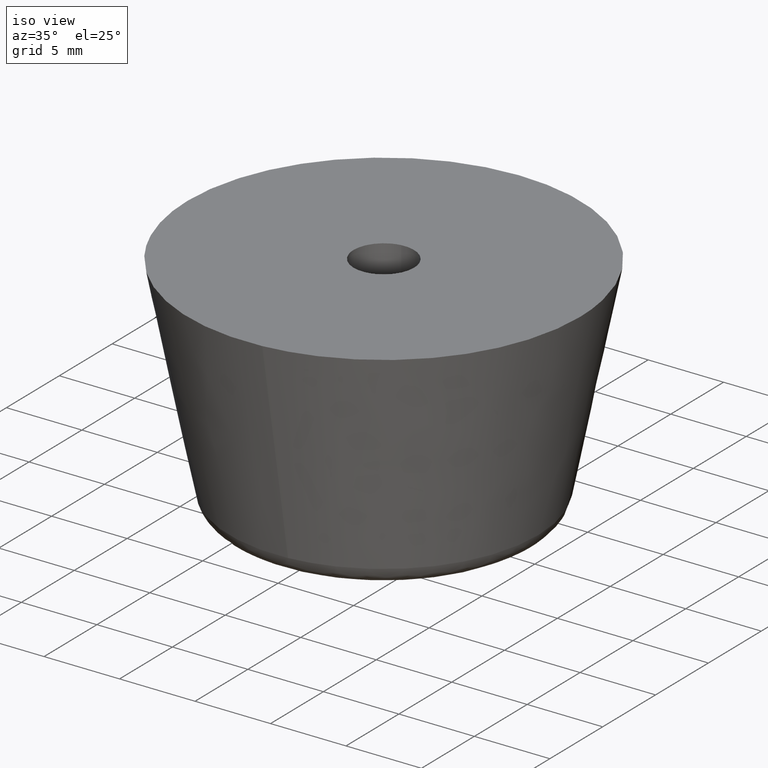
[diagram: clean part render]
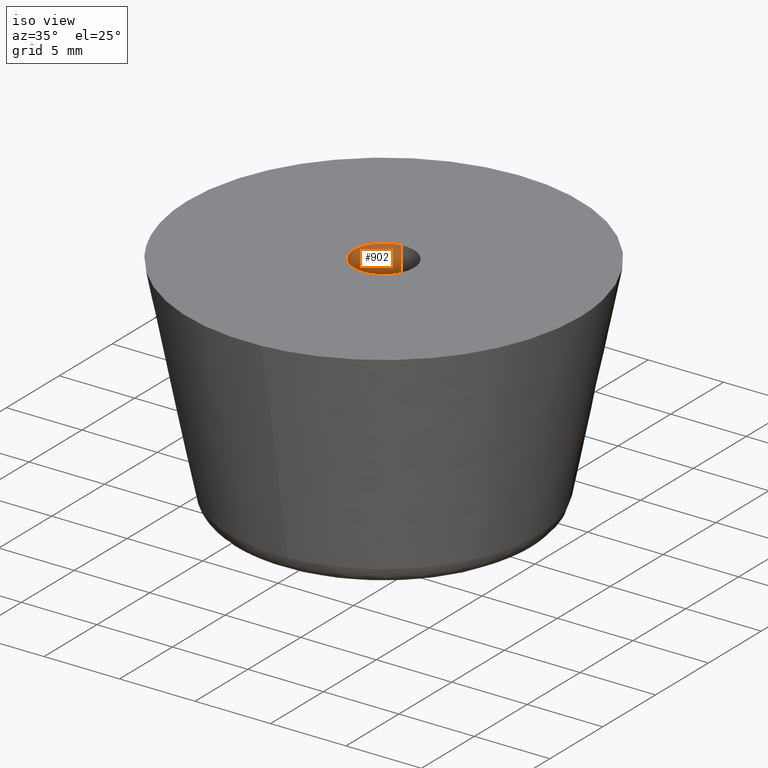
[diagram: same view with one face highlighted and labeled with its STEP entity id]
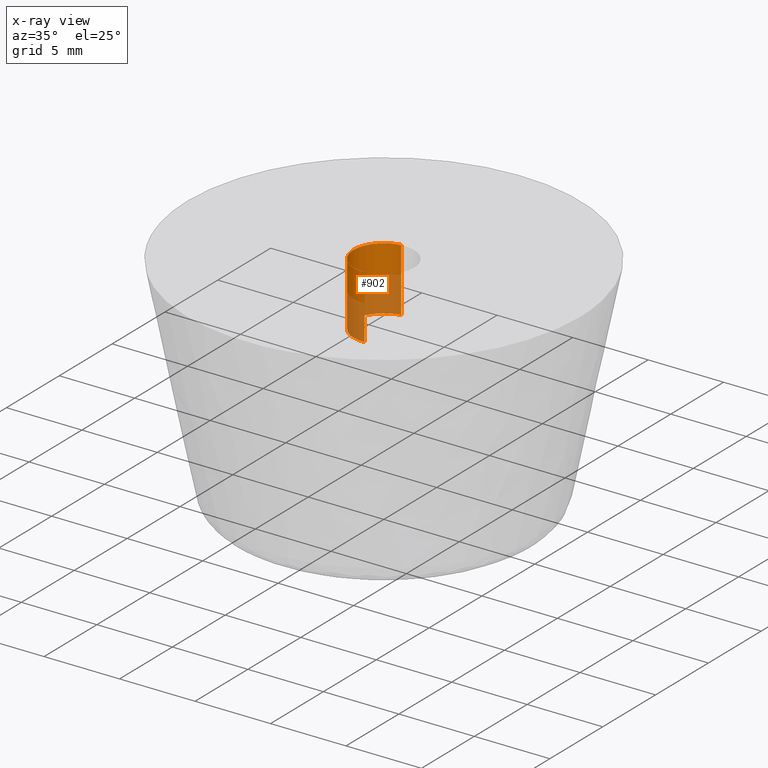
[diagram: x-ray of the same camera — body ghosted, the highlighted face saturated]
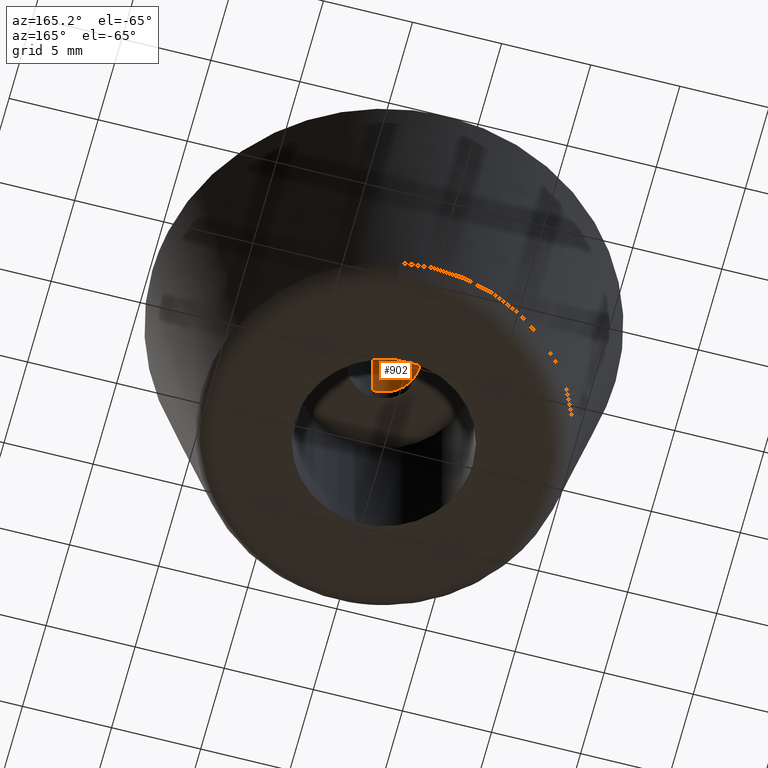
[diagram: same view with one face highlighted and labeled with its STEP entity id]
A machine part, iso view. The second image highlights one B-rep face of the part: STEP entity #902.
The next image is the same camera in x-ray: the body ghosted, the highlighted face saturated — about 52% of this face is hidden behind the body in this view.
A second angle (auxiliary view) of the same face is appended — the face is thin or edge-on in the first view.
In plain terms, the highlighted face is a freeform B-spline surface patch.
Its self-contained STEP definition (entity closure, byte-faithful):
#739=CARTESIAN_POINT('',(-0.236068469352989,1.986019052722641,15.0));
#740=VERTEX_POINT('',#739);
#758=CARTESIAN_POINT('',(-0.236068469352989,1.986019052722641,10.800000000000001));
#759=VERTEX_POINT('',#758);
#760=CARTESIAN_POINT('',(-0.236068469352989,1.986019052722641,15.0));
#761=CARTESIAN_POINT('',(-0.236068469352989,1.986019052722641,10.800000000000001));
#762=QUASI_UNIFORM_CURVE('',1,(#760,#761),.UNSPECIFIED.,.F.,.U.);
#763=EDGE_CURVE('',#740,#759,#762,.T.);
#782=CARTESIAN_POINT('',(0.122097079115449,-1.996269596840936,10.800000000000001));
#783=VERTEX_POINT('',#782);
#797=CARTESIAN_POINT('',(0.122097079115449,-1.996269596840936,15.0));
#798=VERTEX_POINT('',#797);
#799=CARTESIAN_POINT('',(0.122097079115449,-1.996269596840936,15.0));
#800=CARTESIAN_POINT('',(0.122097079115449,-1.996269596840936,10.800000000000001));
#801=QUASI_UNIFORM_CURVE('',1,(#799,#800),.UNSPECIFIED.,.F.,.U.);
#802=EDGE_CURVE('',#798,#783,#801,.T.);
#820=CARTESIAN_POINT('',(0.122097079069714,-1.996269596843733,15.105000000000000));
#821=CARTESIAN_POINT('',(-1.874172517774020,-2.118366675913447,15.104999999999999));
#822=CARTESIAN_POINT('',(-1.996269596843733,-0.122097079069714,15.105000000000000));
#823=CARTESIAN_POINT('',(-2.111572393465055,1.763086981679002,15.105000000000000));
#824=CARTESIAN_POINT('',(-0.236068469313517,1.986019052727332,15.105000000000000));
#825=CARTESIAN_POINT('',(0.122097079069714,-1.996269596843733,10.692375000000000));
#826=CARTESIAN_POINT('',(-1.874172517774020,-2.118366675913447,10.692375000000000));
#827=CARTESIAN_POINT('',(-1.996269596843733,-0.122097079069714,10.692375000000000));
#828=CARTESIAN_POINT('',(-2.111572393465055,1.763086981679002,10.692374999999998));
#829=CARTESIAN_POINT('',(-0.236068469313517,1.986019052727332,10.692374999999997));
#837=(BOUNDED_SURFACE()B_SPLINE_SURFACE(2,1,((#820,#825),(#821,#826),(#822,#827),(#823,#828),(#824,#829)),.UNSPECIFIED.,.F.,.F.,.U.)B_SPLINE_SURFACE_WITH_KNOTS((3,2,3),(2,2),(0.0,3.313708498984759,6.494868658010128),(0.0,4.412625000000004),.UNSPECIFIED.)GEOMETRIC_REPRESENTATION_ITEM()RATIONAL_B_SPLINE_SURFACE(((1.0,1.0),(0.707106781186548,0.707106781186548),(1.0,1.0),(0.718822509939086,0.718822509939086),(0.977505800795127,0.977505800795127)))REPRESENTATION_ITEM('')SURFACE());
#838=CARTESIAN_POINT('',(-2.0,0.0,15.0));
#839=VERTEX_POINT('',#838);
#840=CARTESIAN_POINT('',(-2.0,0.0,15.0));
#841=CARTESIAN_POINT('',(-2.000000000000000,1.776349051831628,15.0));
#842=CARTESIAN_POINT('',(-0.236068469352989,1.986019052722640,15.000000000000004));
#850=(BOUNDED_CURVE()B_SPLINE_CURVE(2,(#840,#841,#842),.UNSPECIFIED.,.F.,.U.)B_SPLINE_CURVE_WITH_KNOTS((3,3),(0.0,0.229562473508926),.UNSPECIFIED.)CURVE()GEOMETRIC_REPRESENTATION_ITEM()RATIONAL_B_SPLINE_CURVE((1.0,0.731050832860771,0.956026754174719))REPRESENTATION_ITEM(''));
#851=EDGE_CURVE('',#839,#740,#850,.T.);
#852=ORIENTED_EDGE('',*,*,#851,.F.);
#853=CARTESIAN_POINT('',(0.122097079115449,-1.996269596840937,15.0));
#854=CARTESIAN_POINT('',(0.061105526643041,-2.000000000000000,15.0));
#855=CARTESIAN_POINT('',(0.0,-2.0,15.0));
#856=CARTESIAN_POINT('',(-2.000000000000000,-2.000000000000000,14.999999999999995));
#857=CARTESIAN_POINT('',(-2.0,0.0,15.0));
#865=(BOUNDED_CURVE()B_SPLINE_CURVE(2,(#853,#854,#855,#856,#857),.UNSPECIFIED.,.F.,.U.)B_SPLINE_CURVE_WITH_KNOTS((3,2,3),(0.739332962234062,0.750000000000000,1.0),.UNSPECIFIED.)CURVE()GEOMETRIC_REPRESENTATION_ITEM()RATIONAL_B_SPLINE_CURVE((0.976072041656257,0.987502787894119,1.0,0.707106781186548,1.0))REPRESENTATION_ITEM(''));
#866=EDGE_CURVE('',#798,#839,#865,.T.);
#867=ORIENTED_EDGE('',*,*,#866,.F.);
#868=ORIENTED_EDGE('',*,*,#802,.T.);
#869=CARTESIAN_POINT('',(-2.0,0.0,10.800000000000001));
#870=VERTEX_POINT('',#869);
#871=CARTESIAN_POINT('',(0.122097079115449,-1.996269596840937,10.800000000000001));
#872=CARTESIAN_POINT('',(0.061105526643041,-2.000000000000000,10.800000000000002));
#873=CARTESIAN_POINT('',(0.0,-2.0,10.800000000000001));
#874=CARTESIAN_POINT('',(-2.000000000000000,-2.000000000000000,10.800000000000001));
#875=CARTESIAN_POINT('',(-2.0,0.0,10.800000000000001));
#883=(BOUNDED_CURVE()B_SPLINE_CURVE(2,(#871,#872,#873,#874,#875),.UNSPECIFIED.,.F.,.U.)B_SPLINE_CURVE_WITH_KNOTS((3,2,3),(0.739332962234062,0.750000000000000,1.0),.UNSPECIFIED.)CURVE()GEOMETRIC_REPRESENTATION_ITEM()RATIONAL_B_SPLINE_CURVE((0.976072041656257,0.987502787894119,1.0,0.707106781186548,1.0))REPRESENTATION_ITEM(''));
#884=EDGE_CURVE('',#783,#870,#883,.T.);
#885=ORIENTED_EDGE('',*,*,#884,.T.);
#886=CARTESIAN_POINT('',(-2.0,0.0,10.800000000000001));
#887=CARTESIAN_POINT('',(-2.000000000000000,1.776349051831628,10.799999999999999));
#888=CARTESIAN_POINT('',(-0.236068469352989,1.986019052722640,10.800000000000001));
#896=(BOUNDED_CURVE()B_SPLINE_CURVE(2,(#886,#887,#888),.UNSPECIFIED.,.F.,.U.)B_SPLINE_CURVE_WITH_KNOTS((3,3),(0.0,0.229562473508926),.UNSPECIFIED.)CURVE()GEOMETRIC_REPRESENTATION_ITEM()RATIONAL_B_SPLINE_CURVE((1.0,0.731050832860771,0.956026754174719))REPRESENTATION_ITEM(''));
#897=EDGE_CURVE('',#870,#759,#896,.T.);
#898=ORIENTED_EDGE('',*,*,#897,.T.);
#899=ORIENTED_EDGE('',*,*,#763,.F.);
#900=EDGE_LOOP('',(#852,#867,#868,#885,#898,#899));
#901=FACE_OUTER_BOUND('',#900,.T.);
#902=ADVANCED_FACE('',(#901),#837,.F.);